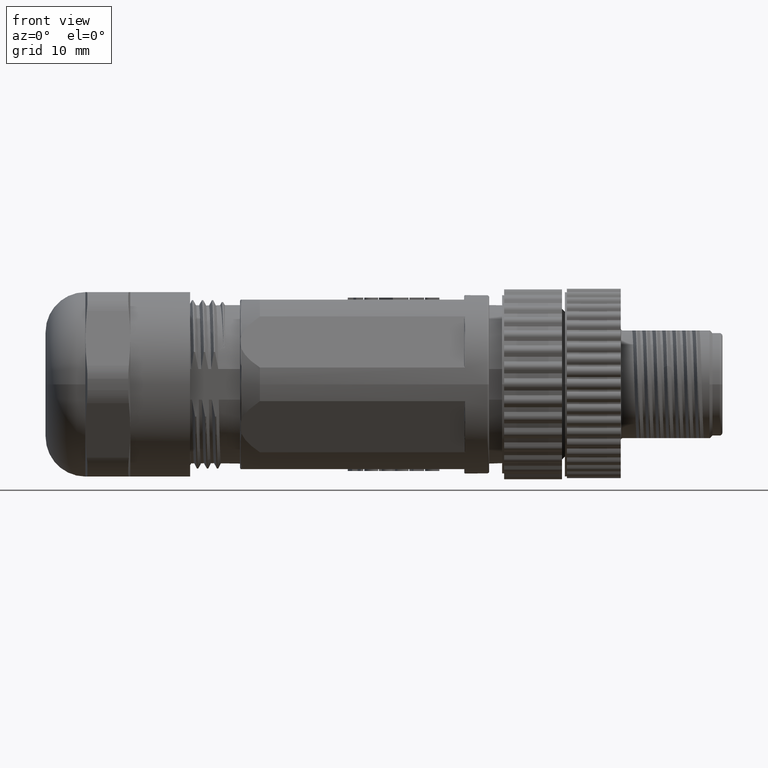
[diagram: clean part render]
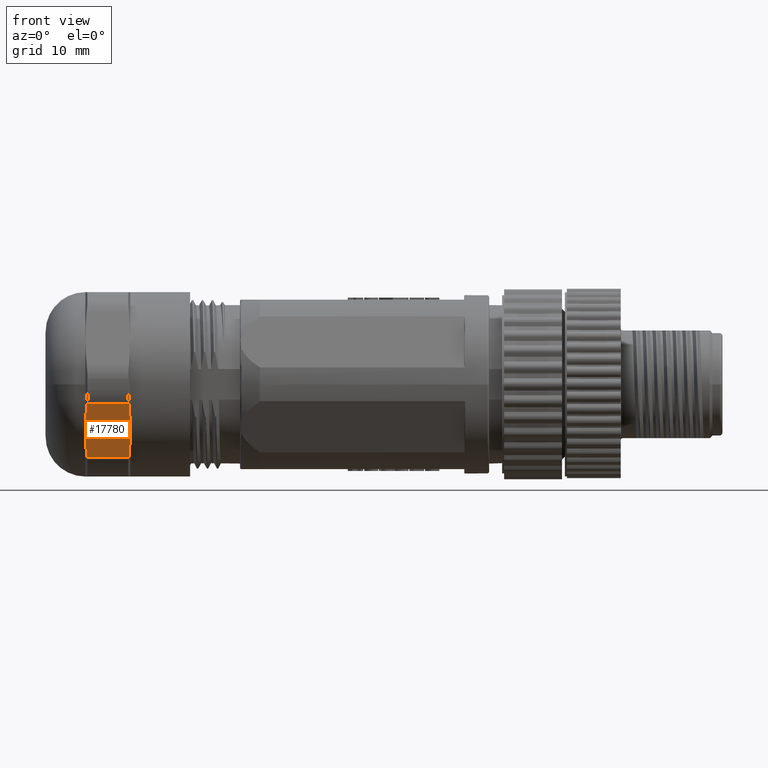
[diagram: same view with one face highlighted and labeled with its STEP entity id]
A machine part, front view. The second image highlights one B-rep face of the part: STEP entity #17780.
In plain terms, the highlighted planar face has unit normal (0, 0.866, 0.5).
Its self-contained STEP definition (entity closure, byte-faithful):
#4988=CARTESIAN_POINT('',(-3.907843125851E1,-8.010734985006E0,-4.625E0));
#4989=CARTESIAN_POINT('',(-3.907843125851E1,-8.116381957930E0,
-4.442014075229E0));
#4990=CARTESIAN_POINT('',(-3.907454857837E1,-8.327458819920E0,
-4.076418225961E0));
#4991=CARTESIAN_POINT('',(-3.905720849718E1,-8.643604459917E0,
-3.528837914895E0));
#4992=CARTESIAN_POINT('',(-3.902869839764E1,-8.958735669251E0,
-2.983014649278E0));
#4993=CARTESIAN_POINT('',(-3.898950148684E1,-9.272931443689E0,
-2.438811604428E0));
#4994=CARTESIAN_POINT('',(-3.895653807993E1,-9.482301827983E0,
-2.076171461230E0));
#4995=CARTESIAN_POINT('',(-3.893845188262E1,-9.586925011621E0,
-1.894958791520E0));
#5006=CARTESIAN_POINT('',(-3.457843125851E1,-8.010734985006E0,-4.625E0));
#5007=CARTESIAN_POINT('',(-3.457843125851E1,-8.116381957930E0,
-4.442014075229E0));
#5008=CARTESIAN_POINT('',(-3.458231393865E1,-8.327458819920E0,
-4.076418225961E0));
#5009=CARTESIAN_POINT('',(-3.459965401984E1,-8.643604459917E0,
-3.528837914895E0));
#5010=CARTESIAN_POINT('',(-3.462816411938E1,-8.958735669251E0,
-2.983014649278E0));
#5011=CARTESIAN_POINT('',(-3.466736103018E1,-9.272931443689E0,
-2.438811604428E0));
#5012=CARTESIAN_POINT('',(-3.470032443709E1,-9.482301827983E0,
-2.076171461230E0));
#5013=CARTESIAN_POINT('',(-3.471841063440E1,-9.586925011621E0,
-1.894958791520E0));
#5022=CARTESIAN_POINT('',(-3.471841063440E1,-9.586925011621E0,
-1.894958791520E0));
#5042=DIRECTION('',(1.E0,0.E0,1.283847252077E-14));
#5043=VECTOR('',#5042,4.220041248213E0);
#5044=CARTESIAN_POINT('',(-3.893845188262E1,-9.586925011621E0,
-1.894958791520E0));
#5045=LINE('',#5044,#5043);
#5046=DIRECTION('',(-1.E0,-2.483507799100E-14,3.851541756231E-14));
#5047=VECTOR('',#5046,4.220041248213E0);
#5048=CARTESIAN_POINT('',(-3.471841063440E1,-6.434544958391E0,
-7.355041208480E0));
#5049=LINE('',#5048,#5047);
#5096=CARTESIAN_POINT('',(-3.471841063440E1,-6.434544958391E0,
-7.355041208480E0));
#5097=CARTESIAN_POINT('',(-3.470031664222E1,-6.539213233004E0,
-7.173750438910E0));
#5098=CARTESIAN_POINT('',(-3.466733838257E1,-6.748677028811E0,
-6.810948502226E0));
#5099=CARTESIAN_POINT('',(-3.462811013582E1,-7.063209287352E0,
-6.266162649814E0));
#5100=CARTESIAN_POINT('',(-3.459962501342E1,-7.378314682219E0,
-5.720384096166E0));
#5101=CARTESIAN_POINT('',(-3.458231596916E1,-7.694052826353E0,
-5.173509588637E0));
#5102=CARTESIAN_POINT('',(-3.457843125851E1,-7.905090238771E0,
-4.807982068032E0));
#5103=CARTESIAN_POINT('',(-3.457843125851E1,-8.010734985006E0,-4.625E0));
#5112=CARTESIAN_POINT('',(-3.893845188262E1,-6.434544958391E0,
-7.355041208480E0));
#5132=CARTESIAN_POINT('',(-3.893845188262E1,-6.434544958391E0,
-7.355041208480E0));
#5133=CARTESIAN_POINT('',(-3.895654587480E1,-6.539213233004E0,
-7.173750438910E0));
#5134=CARTESIAN_POINT('',(-3.898952413445E1,-6.748677028811E0,
-6.810948502226E0));
#5135=CARTESIAN_POINT('',(-3.902875238120E1,-7.063209287352E0,
-6.266162649814E0));
#5136=CARTESIAN_POINT('',(-3.905723750360E1,-7.378314682219E0,
-5.720384096166E0));
#5137=CARTESIAN_POINT('',(-3.907454654786E1,-7.694052826353E0,
-5.173509588637E0));
#5138=CARTESIAN_POINT('',(-3.907843125851E1,-7.905090238771E0,
-4.807982068032E0));
#5139=CARTESIAN_POINT('',(-3.907843125851E1,-8.010734985006E0,-4.625E0));
#11491=VERTEX_POINT('',#5022);
#11492=CARTESIAN_POINT('',(-3.893845188262E1,-9.586925011621E0,
-1.894958791520E0));
#11493=VERTEX_POINT('',#11492);
#11496=VERTEX_POINT('',#5112);
#11497=CARTESIAN_POINT('',(-3.471841063440E1,-6.434544958391E0,
-7.355041208480E0));
#11498=VERTEX_POINT('',#11497);
#11535=VERTEX_POINT('',#5139);
#11539=VERTEX_POINT('',#5103);
#17763=CARTESIAN_POINT('',(-3.457843125851E1,-6.110899465810E0,
-7.915611645272E0));
#17764=DIRECTION('',(0.E0,8.660254037844E-1,5.E-1));
#17765=DIRECTION('',(0.E0,-5.E-1,8.660254037844E-1));
#17766=AXIS2_PLACEMENT_3D('',#17763,#17764,#17765);
#17767=PLANE('',#17766);
#17769=ORIENTED_EDGE('',*,*,#17768,.T.);
#17770=ORIENTED_EDGE('',*,*,#17752,.F.);
#17772=ORIENTED_EDGE('',*,*,#17771,.F.);
#17774=ORIENTED_EDGE('',*,*,#17773,.T.);
#17776=ORIENTED_EDGE('',*,*,#17775,.T.);
#17777=ORIENTED_EDGE('',*,*,#17723,.T.);
#17778=EDGE_LOOP('',(#17769,#17770,#17772,#17774,#17776,#17777));
#17779=FACE_OUTER_BOUND('',#17778,.F.);
#17780=ADVANCED_FACE('',(#17779),#17767,.F.);
#4996=B_SPLINE_CURVE_WITH_KNOTS('',3,(#4988,#4989,#4990,#4991,#4992,#4993,#4994,
#4995),.UNSPECIFIED.,.F.,.F.,(4,1,1,1,1,4),(0.E0,2.E-1,4.E-1,6.E-1,8.E-1,1.E0),
.UNSPECIFIED.);
#5014=B_SPLINE_CURVE_WITH_KNOTS('',3,(#5006,#5007,#5008,#5009,#5010,#5011,#5012,
#5013),.UNSPECIFIED.,.F.,.F.,(4,1,1,1,1,4),(0.E0,2.E-1,4.E-1,6.E-1,8.E-1,1.E0),
.UNSPECIFIED.);
#5104=B_SPLINE_CURVE_WITH_KNOTS('',3,(#5096,#5097,#5098,#5099,#5100,#5101,#5102,
#5103),.UNSPECIFIED.,.F.,.F.,(4,1,1,1,1,4),(0.E0,2.E-1,4.E-1,6.E-1,8.E-1,1.E0),
.UNSPECIFIED.);
#5140=B_SPLINE_CURVE_WITH_KNOTS('',3,(#5132,#5133,#5134,#5135,#5136,#5137,#5138,
#5139),.UNSPECIFIED.,.F.,.F.,(4,1,1,1,1,4),(0.E0,2.E-1,4.E-1,6.E-1,8.E-1,1.E0),
.UNSPECIFIED.);
#17723=EDGE_CURVE('',#11535,#11493,#4996,.T.);
#17752=EDGE_CURVE('',#11539,#11491,#5014,.T.);
#17768=EDGE_CURVE('',#11493,#11491,#5045,.T.);
#17771=EDGE_CURVE('',#11498,#11539,#5104,.T.);
#17773=EDGE_CURVE('',#11498,#11496,#5049,.T.);
#17775=EDGE_CURVE('',#11496,#11535,#5140,.T.);